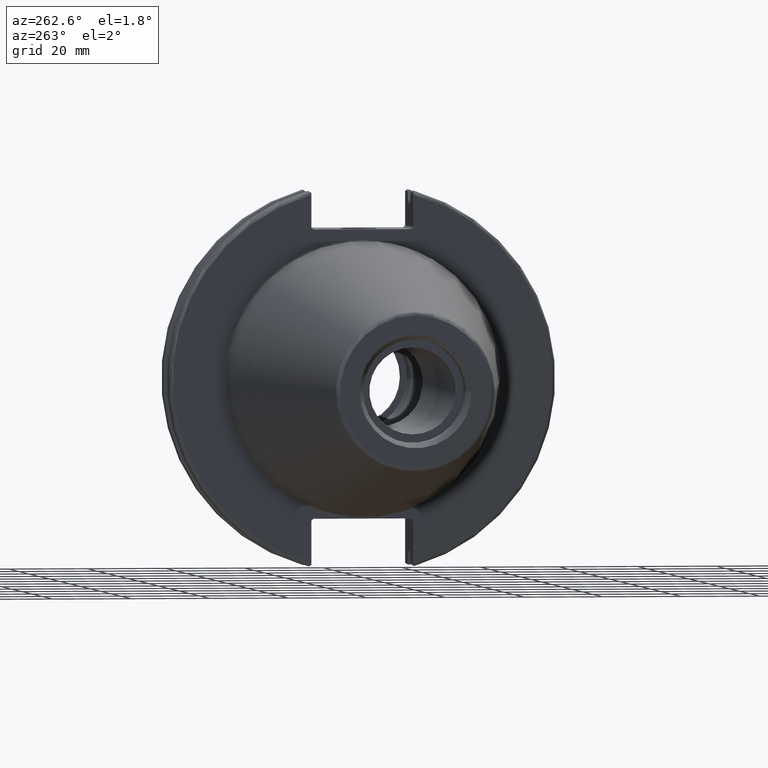
[diagram: clean part render]
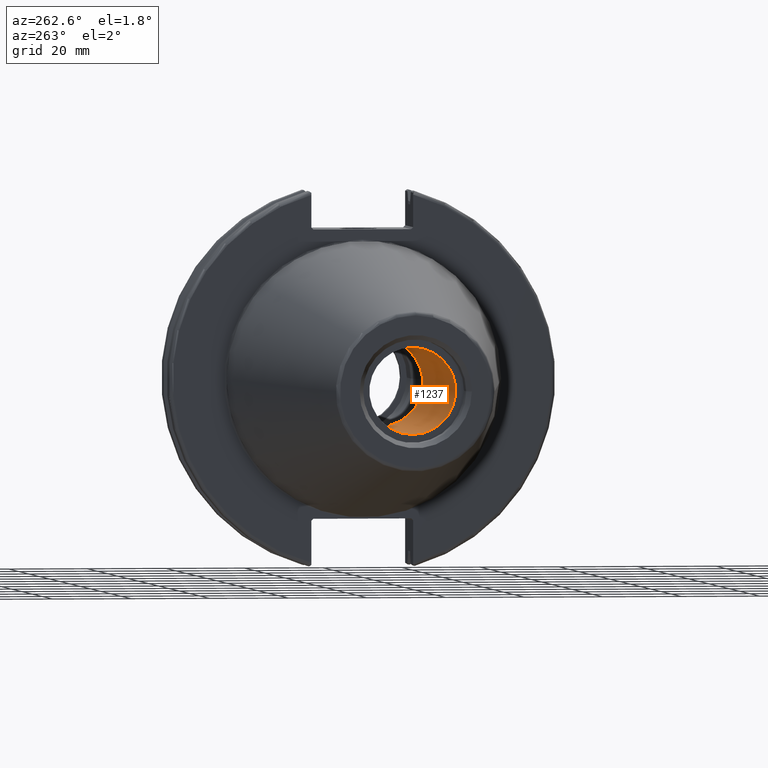
[diagram: same view with one face highlighted and labeled with its STEP entity id]
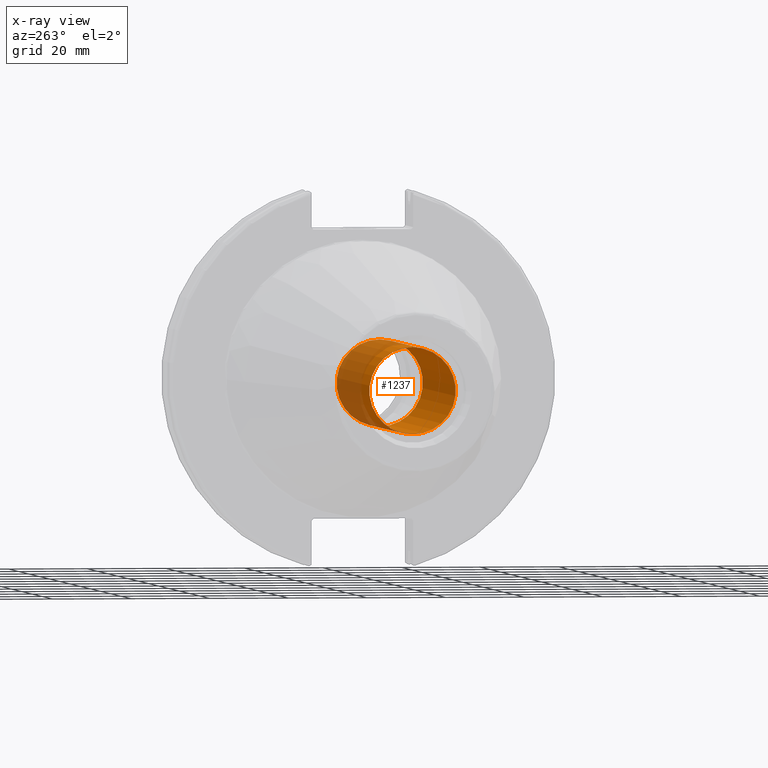
[diagram: x-ray of the same camera — body ghosted, the highlighted face saturated]
A machine part, auxiliary view. The second image highlights one B-rep face of the part: STEP entity #1237.
The next image is the same camera in x-ray: the body ghosted, the highlighted face saturated — about 37% of this face is hidden behind the body in this view.
In plain terms, the highlighted cylindrical surface (bore or boss wall) has radius 10.9855 mm, axis along (-1, 0, 0).
Its self-contained STEP definition (entity closure, byte-faithful):
#137=FACE_OUTER_BOUND('',#215,.T.);
#215=EDGE_LOOP('',(#866,#867,#868,#869));
#296=LINE('',#1916,#388);
#388=VECTOR('',#1552,10.9855);
#481=CIRCLE('',#1380,10.9855);
#484=CIRCLE('',#1387,10.9855);
#542=VERTEX_POINT('',#1903);
#545=VERTEX_POINT('',#1914);
#667=EDGE_CURVE('',#542,#542,#481,.T.);
#671=EDGE_CURVE('',#545,#545,#484,.T.);
#672=EDGE_CURVE('',#545,#542,#296,.T.);
#866=ORIENTED_EDGE('',*,*,#671,.F.);
#867=ORIENTED_EDGE('',*,*,#672,.T.);
#868=ORIENTED_EDGE('',*,*,#667,.T.);
#869=ORIENTED_EDGE('',*,*,#672,.F.);
#1217=CYLINDRICAL_SURFACE('',#1386,10.9855);
#1237=ADVANCED_FACE('',(#137),#1217,.F.);
#1380=AXIS2_PLACEMENT_3D('',#1904,#1535,#1536);
#1386=AXIS2_PLACEMENT_3D('',#1913,#1548,#1549);
#1387=AXIS2_PLACEMENT_3D('',#1915,#1550,#1551);
#1535=DIRECTION('center_axis',(1.,0.,0.));
#1536=DIRECTION('ref_axis',(0.,0.,1.));
#1548=DIRECTION('center_axis',(-1.,0.,0.));
#1549=DIRECTION('ref_axis',(0.,0.,1.));
#1550=DIRECTION('center_axis',(1.,0.,0.));
#1551=DIRECTION('ref_axis',(0.,0.,1.));
#1552=DIRECTION('',(1.,0.,0.));
#1903=CARTESIAN_POINT('',(-30.95,1.34533574120333E-15,-10.9855));
#1904=CARTESIAN_POINT('Origin',(-30.95,0.,0.));
#1913=CARTESIAN_POINT('Origin',(-61.6,0.,0.));
#1914=CARTESIAN_POINT('',(-95.25,1.34533574120333E-15,-10.9855));
#1915=CARTESIAN_POINT('Origin',(-95.25,0.,0.));
#1916=CARTESIAN_POINT('',(-61.6,-1.34533574120333E-15,-10.9855));